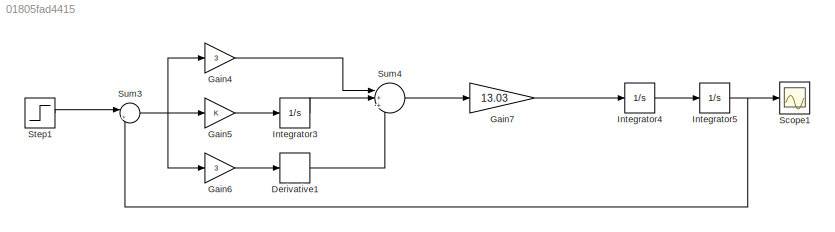
MODEL slx_01805fad4415
KIND model
CONFIG AbsTol = auto
CONFIG EnableMultiTasking = off
CONFIG FixedStep = auto
CONFIG MaxStep = auto
CONFIG MinStep = auto
CONFIG RelTol = 1e-3
CONFIG SampleTimeConstraint = Unconstrained
CONFIG SolverName = VariableStepAuto
CONFIG StartTime = 0.0
CONFIG StopTime = 20.0
BLOCK [Derivative] Derivative1
BLOCK [Gain] Gain4
  Gain = 3
BLOCK [Gain] Gain5
BLOCK [Gain] Gain6
  Gain = 3
BLOCK [Gain] Gain7
  Gain = 13.03
BLOCK [Integrator] Integrator3
BLOCK [Integrator] Integrator4
BLOCK [Integrator] Integrator5
BLOCK [Scope] Scope1
  Floating = off
  NumInputPorts = 1
  ScopeSpecificationString = Simulink.scopes.TimeScopeBlockCfg('CurrentConfiguration', extmgr.ConfigurationSet(extmgr.Configuration('Core','General UI',true),extmgr.Configuration('Core','Source UI',true),extmgr.Configuration('Sources','WiredSimulink',true,'DataLogging',true,'DataLoggingSaveFormat','StructureWithTime'),extmgr.Configuration('Visuals','Time Domain',true,'SerializedDisplays',{struct('MinYLimReal','-1.00000','MaxY...<+1449ch>
BLOCK [Step] Step1
  After = 0.3
  SampleTime = 0
BLOCK [Sum] Sum3
  Inputs = |+-
BLOCK [Sum] Sum4
  Inputs = |+++
LINE Derivative1:1 -> Sum4:3
LINE Gain4:1 -> Sum4:1
LINE Gain5:1 -> Integrator3:1
LINE Gain6:1 -> Derivative1:1
LINE Gain7:1 -> Integrator4:1
LINE Integrator3:1 -> Sum4:2
LINE Integrator4:1 -> Integrator5:1
NET Integrator5:1 -> Scope1:1, Sum3:2
LINE Step1:1 -> Sum3:1
NET Sum3:1 -> Gain4:1, Gain5:1, Gain6:1
LINE Sum4:1 -> Gain7:1
note: NET lines group one-source signal fan-out (src -> all destinations, sorted); 1:1 wires keep LINE
